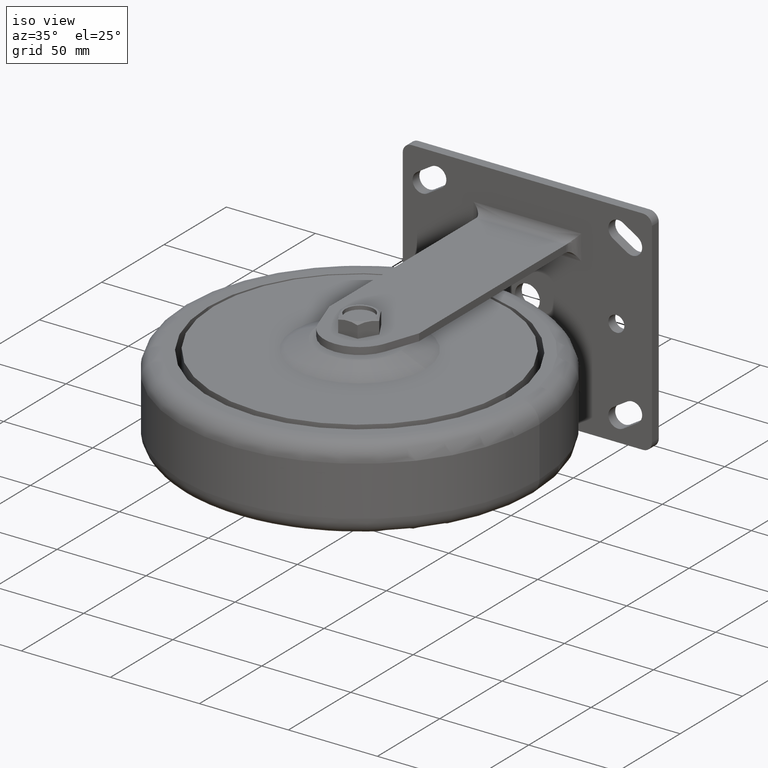
[diagram: clean part render]
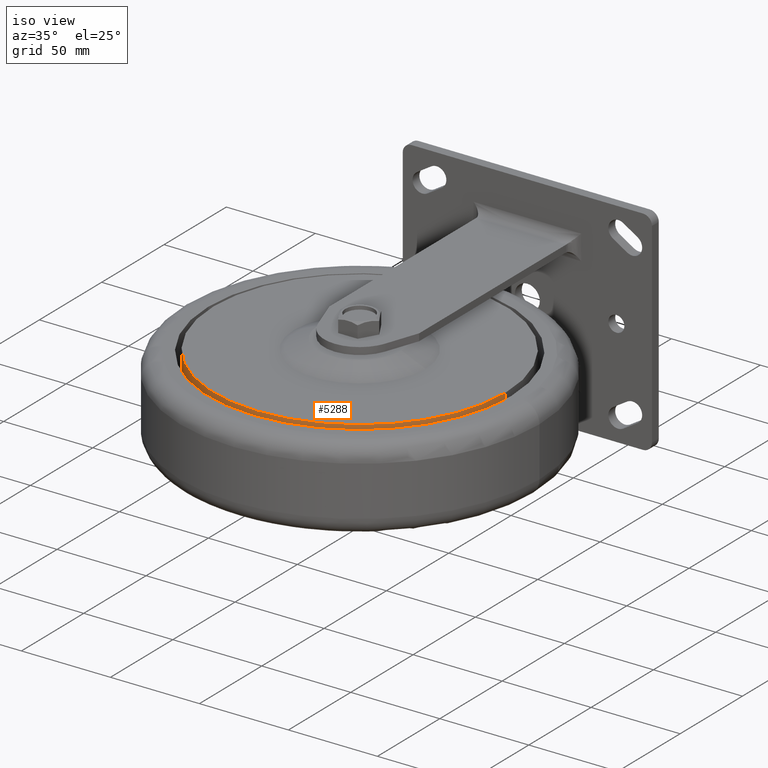
[diagram: same view with one face highlighted and labeled with its STEP entity id]
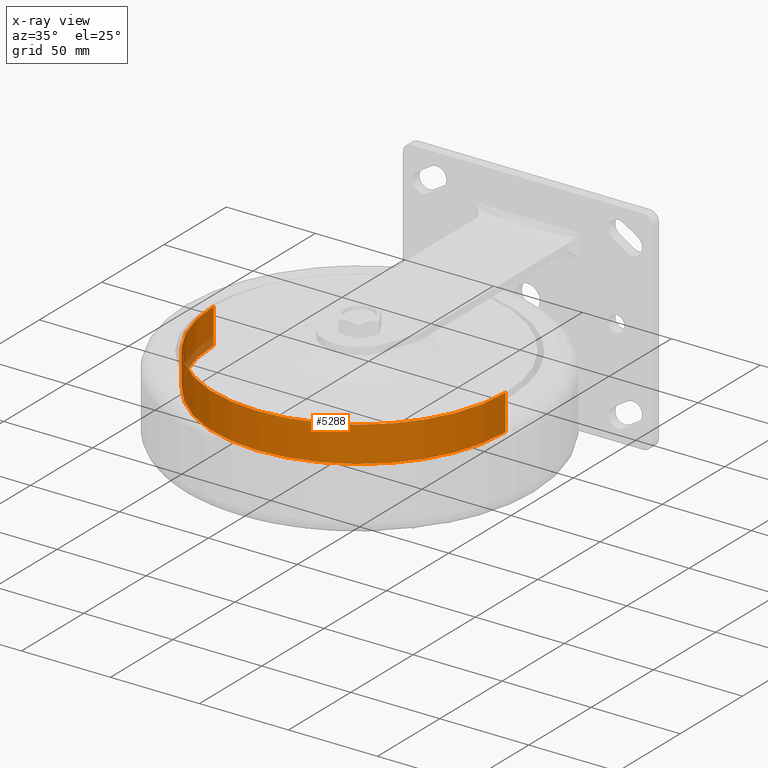
[diagram: x-ray of the same camera — body ghosted, the highlighted face saturated]
A machine part, iso view. The second image highlights one B-rep face of the part: STEP entity #5288.
The next image is the same camera in x-ray: the body ghosted, the highlighted face saturated — about 2% of this face is hidden behind the body in this view.
In plain terms, the highlighted cylindrical surface (partial cylindrical patch) has radius 82 mm, axis along (0, 0, -1).
Its self-contained STEP definition (entity closure, byte-faithful):
#140 = DIRECTION ( 'NONE',  ( -1.000000000000000000, 0.000000000000000000, 0.000000000000000000 ) ) ;
#287 = DIRECTION ( 'NONE',  ( 0.000000000000000000, 0.000000000000000000, -1.000000000000000000 ) ) ;
#386 = VECTOR ( 'NONE', #4709, 1000.000000000000000 ) ;
#456 = CARTESIAN_POINT ( 'NONE',  ( -82.00000000000000000, 0.000000000000000000, 30.75500100071695186 ) ) ;
#486 = EDGE_LOOP ( 'NONE', ( #3847, #3664, #4464, #2756 ) ) ;
#1049 = CARTESIAN_POINT ( 'NONE',  ( 82.00000000000000000, 1.004210375300829793E-14, 25.00000000000000000 ) ) ;
#1130 = FACE_OUTER_BOUND ( 'NONE', #486, .T. ) ;
#1162 = VECTOR ( 'NONE', #2327, 1000.000000000000000 ) ;
#1609 = EDGE_CURVE ( 'NONE', #4521, #4519, #3793, .T. ) ;
#1659 = CARTESIAN_POINT ( 'NONE',  ( 82.00000000000000000, 1.004210375300829793E-14, 30.75500100071695186 ) ) ;
#1832 = VERTEX_POINT ( 'NONE', #1049 ) ;
#2327 = DIRECTION ( 'NONE',  ( 0.000000000000000000, 0.000000000000000000, -1.000000000000000000 ) ) ;
#2624 = CARTESIAN_POINT ( 'NONE',  ( 82.00000000000000000, 1.004210375300829793E-14, 4.999999999868270706 ) ) ;
#2756 = ORIENTED_EDGE ( 'NONE', *, *, #3693, .F. ) ;
#2834 = DIRECTION ( 'NONE',  ( -1.000000000000000000, 0.000000000000000000, 0.000000000000000000 ) ) ;
#2880 = EDGE_CURVE ( 'NONE', #1832, #4938, #5480, .T. ) ;
#2975 = EDGE_CURVE ( 'NONE', #1832, #4521, #5089, .T. ) ;
#3097 = DIRECTION ( 'NONE',  ( 0.000000000000000000, 0.000000000000000000, -1.000000000000000000 ) ) ;
#3371 = CYLINDRICAL_SURFACE ( 'NONE', #4964, 82.00000000000000000 ) ;
#3639 = AXIS2_PLACEMENT_3D ( 'NONE', #4353, #3097, #140 ) ;
#3664 = ORIENTED_EDGE ( 'NONE', *, *, #2975, .T. ) ;
#3682 = CARTESIAN_POINT ( 'NONE',  ( 0.000000000000000000, 0.000000000000000000, 30.75500100071695186 ) ) ;
#3693 = EDGE_CURVE ( 'NONE', #4938, #4519, #4697, .T. ) ;
#3793 = LINE ( 'NONE', #456, #386 ) ;
#3847 = ORIENTED_EDGE ( 'NONE', *, *, #2880, .F. ) ;
#4117 = CARTESIAN_POINT ( 'NONE',  ( 0.000000000000000000, 0.000000000000000000, 25.00000000000000000 ) ) ;
#4353 = CARTESIAN_POINT ( 'NONE',  ( 0.000000000000000000, 0.000000000000000000, 4.999999999868270706 ) ) ;
#4464 = ORIENTED_EDGE ( 'NONE', *, *, #1609, .T. ) ;
#4519 = VERTEX_POINT ( 'NONE', #4879 ) ;
#4521 = VERTEX_POINT ( 'NONE', #4904 ) ;
#4561 = AXIS2_PLACEMENT_3D ( 'NONE', #4117, #287, #5445 ) ;
#4697 = CIRCLE ( 'NONE', #3639, 82.00000000000000000 ) ;
#4709 = DIRECTION ( 'NONE',  ( 0.000000000000000000, 0.000000000000000000, -1.000000000000000000 ) ) ;
#4879 = CARTESIAN_POINT ( 'NONE',  ( -82.00000000000000000, 0.000000000000000000, 4.999999999868270706 ) ) ;
#4904 = CARTESIAN_POINT ( 'NONE',  ( -82.00000000000000000, 0.000000000000000000, 25.00000000000000000 ) ) ;
#4938 = VERTEX_POINT ( 'NONE', #2624 ) ;
#4964 = AXIS2_PLACEMENT_3D ( 'NONE', #3682, #5402, #2834 ) ;
#5089 = CIRCLE ( 'NONE', #4561, 82.00000000000000000 ) ;
#5288 = ADVANCED_FACE ( 'NONE', ( #1130 ), #3371, .T. ) ;
#5402 = DIRECTION ( 'NONE',  ( 0.000000000000000000, 0.000000000000000000, -1.000000000000000000 ) ) ;
#5445 = DIRECTION ( 'NONE',  ( -1.000000000000000000, 0.000000000000000000, 0.000000000000000000 ) ) ;
#5480 = LINE ( 'NONE', #1659, #1162 ) ;